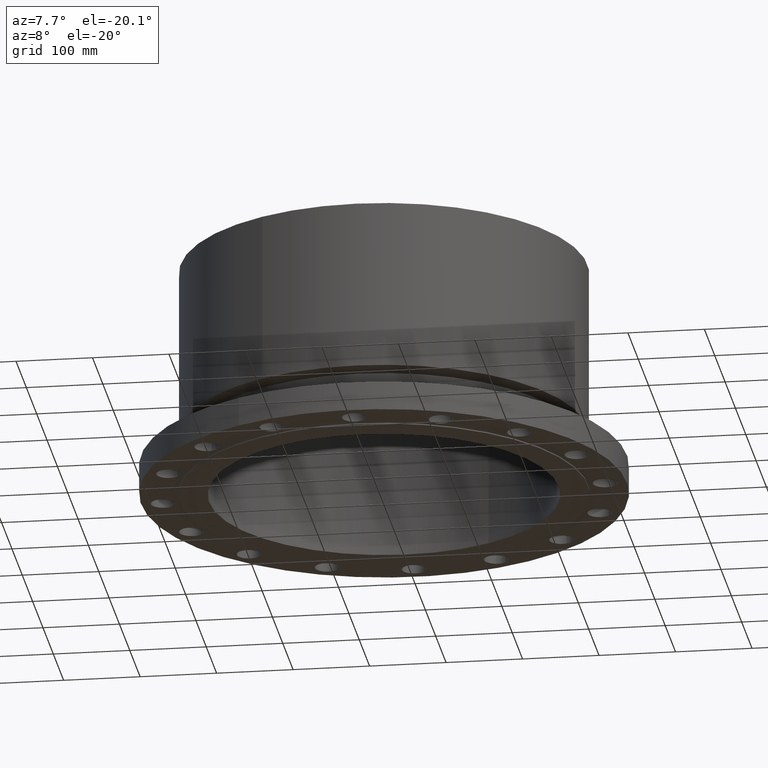
[diagram: clean part render]
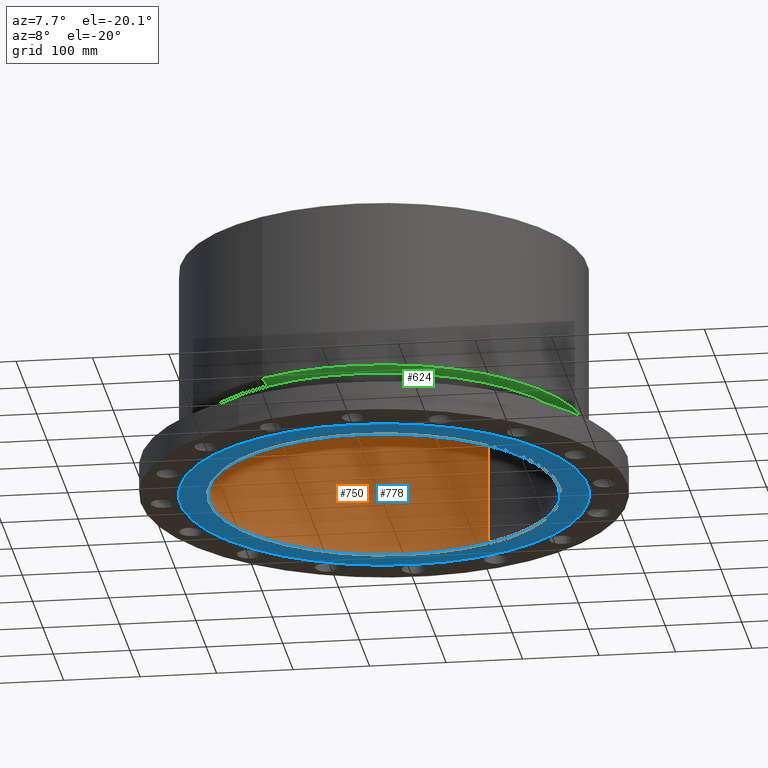
[diagram: same view with three faces highlighted in distinct colors, each labeled with its STEP entity id]
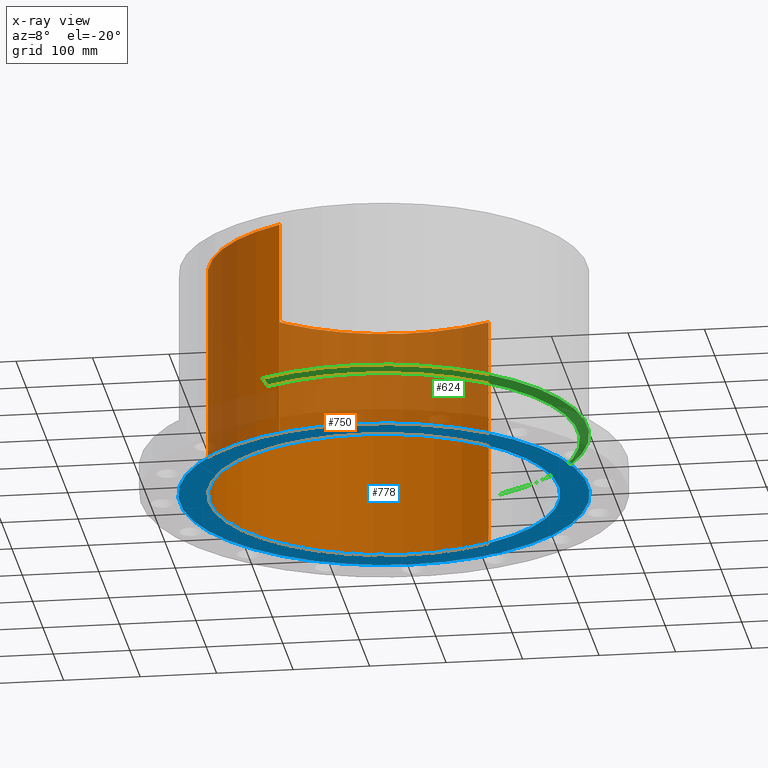
[diagram: x-ray of the same camera — body ghosted, the three highlighted faces saturated]
A machine part, auxiliary view with three faces highlighted in distinct colors.
The next image is the same camera in x-ray (body ghosted, the three faces saturated) — at least one of them is partly hidden behind the body in this view.
Their STEP definitions:

[orange] entity #750 — the highlighted cylindrical surface (partial cylindrical patch) has radius 228.6 mm, axis along (0, 0, -1).
#691=AXIS2_PLACEMENT_3D('Circle Axis2P3D',#689,#690,$) ;
#711=AXIS2_PLACEMENT_3D('Cylinder Axis2P3D',#708,#709,#710) ;
#741=AXIS2_PLACEMENT_3D('Circle Axis2P3D',#739,#740,$) ;
#689=CARTESIAN_POINT('Axis2P3D Location',(0.,0.,11.9375)) ;
#693=CARTESIAN_POINT('Vertex',(-4.31482984746,-7.89824305704,11.9375)) ;
#695=CARTESIAN_POINT('Vertex',(4.31482984746,7.89824305704,11.9375)) ;
#708=CARTESIAN_POINT('Axis2P3D Location',(0.,0.,5.93750000002)) ;
#713=CARTESIAN_POINT('Line Origine',(4.31482984746,7.89824305704,5.93750000002)) ;
#717=CARTESIAN_POINT('Vertex',(4.31482984746,7.89824305704,-0.0625000000003)) ;
#724=CARTESIAN_POINT('Vertex',(-4.31482984746,-7.89824305704,-0.0625000000003)) ;
#727=CARTESIAN_POINT('Line Origine',(-4.31482984746,-7.89824305704,5.93750000002)) ;
#739=CARTESIAN_POINT('Axis2P3D Location',(0.,0.,-0.0625000000003)) ;
#690=DIRECTION('Axis2P3D Direction',(0.,0.,-0.0393700787402)) ;
#709=DIRECTION('Axis2P3D Direction',(0.,0.,-0.0393700787402)) ;
#710=DIRECTION('Axis2P3D XDirection',(-0.0188750212049,-0.0345504945626,0.)) ;
#714=DIRECTION('Vector Direction',(0.,0.,-0.0393700787402)) ;
#728=DIRECTION('Vector Direction',(0.,0.,-0.0393700787402)) ;
#740=DIRECTION('Axis2P3D Direction',(0.,0.,-0.0393700787402)) ;
#715=VECTOR('Line Direction',#714,0.0393700787402) ;
#729=VECTOR('Line Direction',#728,0.0393700787402) ;
#745=ORIENTED_EDGE('',*,*,#697,.F.) ;
#746=ORIENTED_EDGE('',*,*,#731,.T.) ;
#747=ORIENTED_EDGE('',*,*,#743,.T.) ;
#748=ORIENTED_EDGE('',*,*,#719,.F.) ;
#750=ADVANCED_FACE('PartBody',(#749),#712,.F.) ;
#692=CIRCLE('generated circle',#691,9.00000000004) ;
#742=CIRCLE('generated circle',#741,9.00000000004) ;
#712=CYLINDRICAL_SURFACE('generated cylinder',#711,9.00000000004) ;
#697=EDGE_CURVE('',#694,#696,#692,.T.) ;
#719=EDGE_CURVE('',#696,#718,#716,.T.) ;
#731=EDGE_CURVE('',#694,#725,#730,.T.) ;
#743=EDGE_CURVE('',#725,#718,#742,.T.) ;
#744=EDGE_LOOP('',(#745,#746,#747,#748)) ;
#749=FACE_OUTER_BOUND('',#744,.T.) ;
#716=LINE('Line',#713,#715) ;
#730=LINE('Line',#727,#729) ;
#694=VERTEX_POINT('',#693) ;
#696=VERTEX_POINT('',#695) ;
#718=VERTEX_POINT('',#717) ;
#725=VERTEX_POINT('',#724) ;

[blue] entity #778 — the highlighted planar face has unit normal (0, 0, -1).
#722=AXIS2_PLACEMENT_3D('Circle Axis2P3D',#720,#721,$) ;
#741=AXIS2_PLACEMENT_3D('Circle Axis2P3D',#739,#740,$) ;
#754=AXIS2_PLACEMENT_3D('Plane Axis2P3D',#751,#752,#753) ;
#758=AXIS2_PLACEMENT_3D('Circle Axis2P3D',#756,#757,$) ;
#767=AXIS2_PLACEMENT_3D('Circle Axis2P3D',#765,#766,$) ;
#717=CARTESIAN_POINT('Vertex',(4.31482984746,7.89824305704,-0.0625000000003)) ;
#720=CARTESIAN_POINT('Axis2P3D Location',(0.,0.,-0.0625000000003)) ;
#724=CARTESIAN_POINT('Vertex',(-4.31482984746,-7.89824305704,-0.0625000000003)) ;
#739=CARTESIAN_POINT('Axis2P3D Location',(0.,0.,-0.0625000000003)) ;
#751=CARTESIAN_POINT('Axis2P3D Location',(0.,9.00000000004,-0.0625000000003)) ;
#756=CARTESIAN_POINT('Axis2P3D Location',(0.,0.,-0.0625000000003)) ;
#760=CARTESIAN_POINT('Vertex',(-5.03396815536,-9.21461689989,-0.0625000000002)) ;
#762=CARTESIAN_POINT('Vertex',(5.03396815536,9.21461689989,-0.0625000000002)) ;
#765=CARTESIAN_POINT('Axis2P3D Location',(0.,0.,-0.0625000000003)) ;
#721=DIRECTION('Axis2P3D Direction',(0.,0.,-0.0393700787402)) ;
#740=DIRECTION('Axis2P3D Direction',(0.,0.,-0.0393700787402)) ;
#752=DIRECTION('Axis2P3D Direction',(0.,0.,-0.0393700787402)) ;
#753=DIRECTION('Axis2P3D XDirection',(0.0393700787402,0.,0.)) ;
#757=DIRECTION('Axis2P3D Direction',(0.,0.,-0.0393700787402)) ;
#766=DIRECTION('Axis2P3D Direction',(0.,0.,-0.0393700787402)) ;
#771=ORIENTED_EDGE('',*,*,#764,.T.) ;
#772=ORIENTED_EDGE('',*,*,#769,.T.) ;
#775=ORIENTED_EDGE('',*,*,#726,.F.) ;
#776=ORIENTED_EDGE('',*,*,#743,.F.) ;
#777=FACE_BOUND('',#774,.T.) ;
#778=ADVANCED_FACE('PartBody',(#773,#777),#755,.T.) ;
#723=CIRCLE('generated circle',#722,9.00000000004) ;
#742=CIRCLE('generated circle',#741,9.00000000004) ;
#759=CIRCLE('generated circle',#758,10.5) ;
#768=CIRCLE('generated circle',#767,10.5) ;
#726=EDGE_CURVE('',#718,#725,#723,.T.) ;
#743=EDGE_CURVE('',#725,#718,#742,.T.) ;
#764=EDGE_CURVE('',#761,#763,#759,.T.) ;
#769=EDGE_CURVE('',#763,#761,#768,.T.) ;
#770=EDGE_LOOP('',(#771,#772)) ;
#774=EDGE_LOOP('',(#775,#776)) ;
#773=FACE_OUTER_BOUND('',#770,.T.) ;
#755=PLANE('',#754) ;
#718=VERTEX_POINT('',#717) ;
#725=VERTEX_POINT('',#724) ;
#761=VERTEX_POINT('',#760) ;
#763=VERTEX_POINT('',#762) ;

[green] entity #624 — the highlighted conical surface has half-angle 60 deg.
#565=AXIS2_PLACEMENT_3D('Circle Axis2P3D',#563,#564,$) ;
#597=AXIS2_PLACEMENT_3D('Cone Axis2P3D',#594,#595,#596) ;
#608=AXIS2_PLACEMENT_3D('Circle Axis2P3D',#606,#607,$) ;
#560=CARTESIAN_POINT('Vertex',(4.79425538606,8.77582561894,2.87750000001)) ;
#563=CARTESIAN_POINT('Axis2P3D Location',(0.,0.,2.87750000001)) ;
#567=CARTESIAN_POINT('Vertex',(-4.79425538606,-8.77582561894,2.87750000001)) ;
#594=CARTESIAN_POINT('Axis2P3D Location',(0.,0.,2.87750000001)) ;
#599=CARTESIAN_POINT('Line Origine',(4.90692038763,8.98205752098,3.01317731327)) ;
#603=CARTESIAN_POINT('Vertex',(5.01958538921,9.18828942303,3.14885462653)) ;
#606=CARTESIAN_POINT('Axis2P3D Location',(0.,0.,3.14885462653)) ;
#610=CARTESIAN_POINT('Vertex',(-5.01958538921,-9.18828942303,3.14885462653)) ;
#613=CARTESIAN_POINT('Line Origine',(-4.90692038763,-8.98205752098,3.01317731327)) ;
#564=DIRECTION('Axis2P3D Direction',(0.,0.,-0.0393700787402)) ;
#595=DIRECTION('Axis2P3D Direction',(-0.,-0.,0.0393700787402)) ;
#596=DIRECTION('Axis2P3D XDirection',(0.0188750212049,0.0345504945626,0.)) ;
#600=DIRECTION('Vector Direction',(0.0163462478604,0.0299216060045,0.0196850393701)) ;
#607=DIRECTION('Axis2P3D Direction',(-0.,0.,0.0393700787402)) ;
#614=DIRECTION('Vector Direction',(-0.0163462478604,-0.0299216060045,0.0196850393701)) ;
#601=VECTOR('Line Direction',#600,0.0393700787402) ;
#615=VECTOR('Line Direction',#614,0.0393700787402) ;
#619=ORIENTED_EDGE('',*,*,#569,.F.) ;
#620=ORIENTED_EDGE('',*,*,#605,.T.) ;
#621=ORIENTED_EDGE('',*,*,#612,.T.) ;
#622=ORIENTED_EDGE('',*,*,#617,.F.) ;
#624=ADVANCED_FACE('PartBody',(#623),#598,.T.) ;
#566=CIRCLE('generated circle',#565,10.) ;
#609=CIRCLE('generated circle',#608,10.47) ;
#598=CONICAL_SURFACE('Cone',#597,10.,1.0471975512) ;
#569=EDGE_CURVE('',#561,#568,#566,.T.) ;
#605=EDGE_CURVE('',#561,#604,#602,.T.) ;
#612=EDGE_CURVE('',#604,#611,#609,.F.) ;
#617=EDGE_CURVE('',#568,#611,#616,.T.) ;
#618=EDGE_LOOP('',(#619,#620,#621,#622)) ;
#623=FACE_OUTER_BOUND('',#618,.T.) ;
#602=LINE('Line',#599,#601) ;
#616=LINE('Line',#613,#615) ;
#561=VERTEX_POINT('',#560) ;
#568=VERTEX_POINT('',#567) ;
#604=VERTEX_POINT('',#603) ;
#611=VERTEX_POINT('',#610) ;